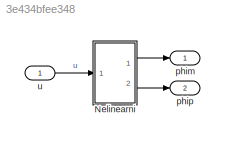
MODEL slx_3e434bfee348
KIND model
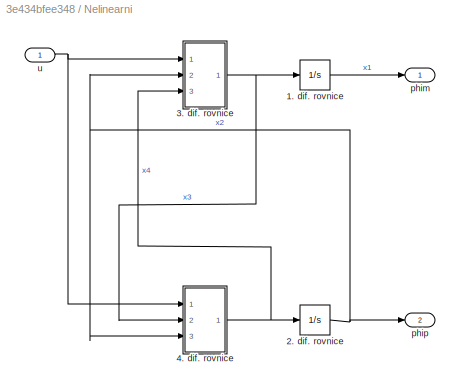
BLOCK [SubSystem] Nelinearni
  Ports = [1, 2]
  RequestExecContextInheritance = off
BLOCK [Integrator] Nelinearni/1. dif. rovnice
  Ports = [1, 1]
BLOCK [Integrator] Nelinearni/2. dif. rovnice
  Ports = [1, 1]
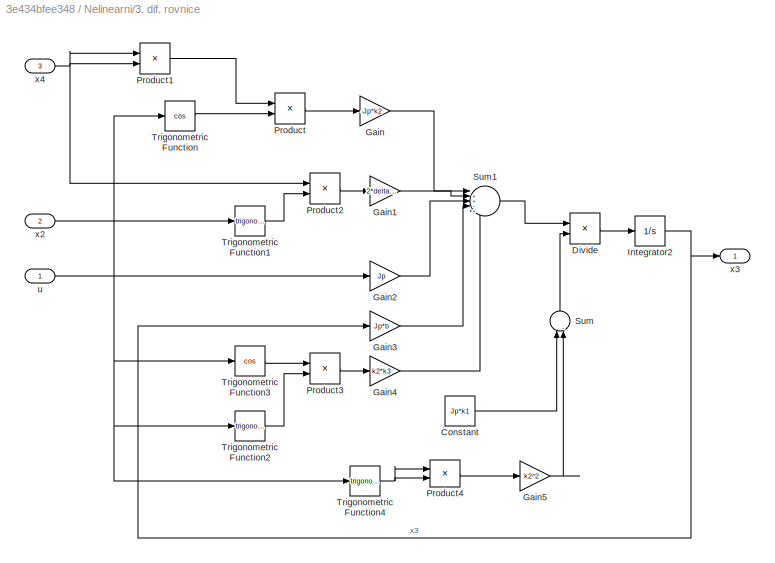
BLOCK [SubSystem] Nelinearni/3. dif. rovnice
  Ports = [3, 1]
  RequestExecContextInheritance = off
BLOCK [Constant] Nelinearni/3. dif. rovnice/Constant
  Value = Jp*k1
BLOCK [Product] Nelinearni/3. dif. rovnice/Divide
  InputSameDT = off
  Inputs = */
  OutDataTypeStr = Inherit: Inherit via internal rule
  Ports = [2, 1]
  RndMeth = Floor
  SaturateOnIntegerOverflow = off
BLOCK [Gain] Nelinearni/3. dif. rovnice/Gain
  Gain = -Jp*k2
  OutDataTypeStr = Inherit: Inherit via internal rule
  ParamDataTypeStr = Inherit: Inherit via internal rule
  SaturateOnIntegerOverflow = off
BLOCK [Gain] Nelinearni/3. dif. rovnice/Gain1
  Gain = 2*delta*k2
  OutDataTypeStr = Inherit: Inherit via internal rule
  ParamDataTypeStr = Inherit: Inherit via internal rule
  SaturateOnIntegerOverflow = off
BLOCK [Gain] Nelinearni/3. dif. rovnice/Gain2
  Gain = Jp
  OutDataTypeStr = Inherit: Inherit via internal rule
  ParamDataTypeStr = Inherit: Inherit via internal rule
  SaturateOnIntegerOverflow = off
BLOCK [Gain] Nelinearni/3. dif. rovnice/Gain3
  Gain = Jp*b
  OutDataTypeStr = Inherit: Inherit via internal rule
  ParamDataTypeStr = Inherit: Inherit via internal rule
  SaturateOnIntegerOverflow = off
BLOCK [Gain] Nelinearni/3. dif. rovnice/Gain4
  Gain = k2*k3
  OutDataTypeStr = Inherit: Inherit via internal rule
  ParamDataTypeStr = Inherit: Inherit via internal rule
  SaturateOnIntegerOverflow = off
BLOCK [Gain] Nelinearni/3. dif. rovnice/Gain5
  Gain = k2^2
  OutDataTypeStr = Inherit: Inherit via internal rule
  ParamDataTypeStr = Inherit: Inherit via internal rule
  SaturateOnIntegerOverflow = off
BLOCK [Integrator] Nelinearni/3. dif. rovnice/Integrator2
  Ports = [1, 1]
BLOCK [Product] Nelinearni/3. dif. rovnice/Product
  InputSameDT = off
  OutDataTypeStr = Inherit: Inherit via internal rule
  Ports = [2, 1]
  RndMeth = Floor
  SaturateOnIntegerOverflow = off
BLOCK [Product] Nelinearni/3. dif. rovnice/Product1
  InputSameDT = off
  OutDataTypeStr = Inherit: Inherit via internal rule
  Ports = [2, 1]
  RndMeth = Floor
  SaturateOnIntegerOverflow = off
BLOCK [Product] Nelinearni/3. dif. rovnice/Product2
  InputSameDT = off
  OutDataTypeStr = Inherit: Inherit via internal rule
  Ports = [2, 1]
  RndMeth = Floor
  SaturateOnIntegerOverflow = off
BLOCK [Product] Nelinearni/3. dif. rovnice/Product3
  InputSameDT = off
  OutDataTypeStr = Inherit: Inherit via internal rule
  Ports = [2, 1]
  RndMeth = Floor
  SaturateOnIntegerOverflow = off
BLOCK [Product] Nelinearni/3. dif. rovnice/Product4
  InputSameDT = off
  OutDataTypeStr = Inherit: Inherit via internal rule
  Ports = [2, 1]
  RndMeth = Floor
  SaturateOnIntegerOverflow = off
BLOCK [Sum] Nelinearni/3. dif. rovnice/Sum
  IconShape = round
  InputSameDT = off
  Inputs = |-+
  OutDataTypeStr = Inherit: Inherit via internal rule
  Ports = [2, 1]
  SaturateOnIntegerOverflow = off
BLOCK [Sum] Nelinearni/3. dif. rovnice/Sum1
  IconShape = round
  InputSameDT = off
  Inputs = |++-++
  OutDataTypeStr = Inherit: Inherit via internal rule
  Ports = [5, 1]
  SaturateOnIntegerOverflow = off
BLOCK [Trigonometry] Nelinearni/3. dif. rovnice/Trigonometric Function
  Operator = cos
  Ports = [1, 1]
BLOCK [Trigonometry] Nelinearni/3. dif. rovnice/Trigonometric Function1
  Ports = [1, 1]
BLOCK [Trigonometry] Nelinearni/3. dif. rovnice/Trigonometric Function2
  Ports = [1, 1]
BLOCK [Trigonometry] Nelinearni/3. dif. rovnice/Trigonometric Function3
  Operator = cos
  Ports = [1, 1]
BLOCK [Trigonometry] Nelinearni/3. dif. rovnice/Trigonometric Function4
  Ports = [1, 1]
BLOCK [Inport] Nelinearni/3. dif. rovnice/u
  IconDisplay = Port number
BLOCK [Inport] Nelinearni/3. dif. rovnice/x2
  IconDisplay = Port number
  Port = 2
BLOCK [Outport] Nelinearni/3. dif. rovnice/x3
  IconDisplay = Port number
BLOCK [Inport] Nelinearni/3. dif. rovnice/x4
  IconDisplay = Port number
  Port = 3
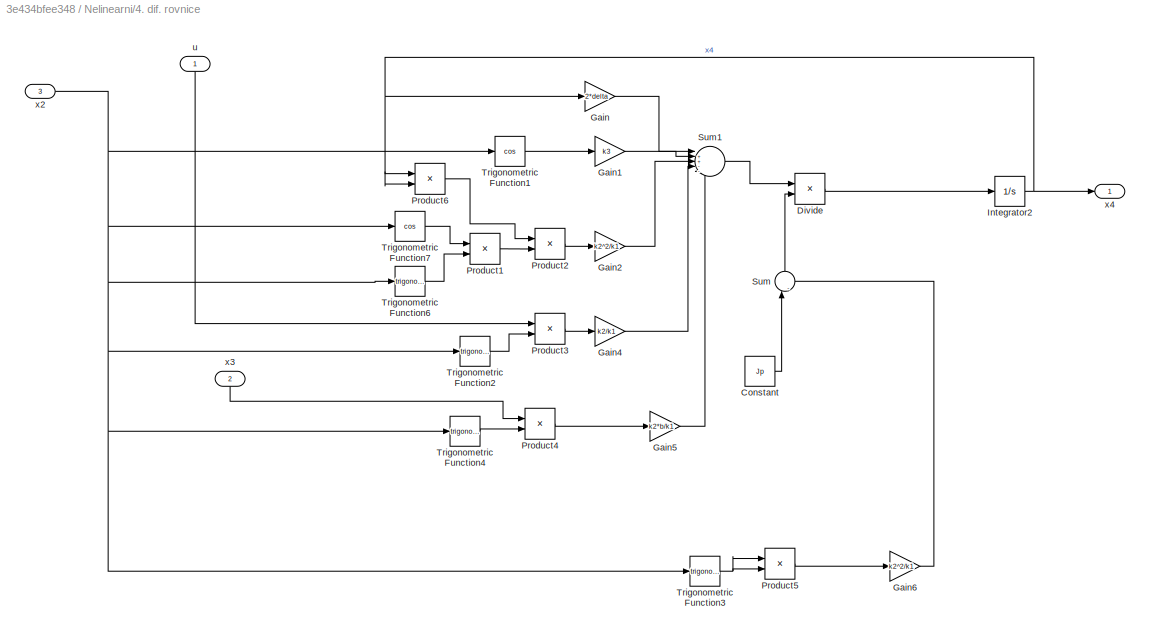
BLOCK [SubSystem] Nelinearni/4. dif. rovnice
  Ports = [3, 1]
  RequestExecContextInheritance = off
BLOCK [Constant] Nelinearni/4. dif. rovnice/Constant
  Value = Jp
BLOCK [Product] Nelinearni/4. dif. rovnice/Divide
  InputSameDT = off
  Inputs = */
  OutDataTypeStr = Inherit: Inherit via internal rule
  Ports = [2, 1]
  RndMeth = Floor
  SaturateOnIntegerOverflow = off
BLOCK [Gain] Nelinearni/4. dif. rovnice/Gain
  Gain = 2*delta
  OutDataTypeStr = Inherit: Inherit via internal rule
  ParamDataTypeStr = Inherit: Inherit via internal rule
  SaturateOnIntegerOverflow = off
BLOCK [Gain] Nelinearni/4. dif. rovnice/Gain1
  Gain = k3
  OutDataTypeStr = Inherit: Inherit via internal rule
  ParamDataTypeStr = Inherit: Inherit via internal rule
  SaturateOnIntegerOverflow = off
BLOCK [Gain] Nelinearni/4. dif. rovnice/Gain2
  Gain = k2^2/k1
  OutDataTypeStr = Inherit: Inherit via internal rule
  ParamDataTypeStr = Inherit: Inherit via internal rule
  SaturateOnIntegerOverflow = off
BLOCK [Gain] Nelinearni/4. dif. rovnice/Gain4
  Gain = k2/k1
  OutDataTypeStr = Inherit: Inherit via internal rule
  ParamDataTypeStr = Inherit: Inherit via internal rule
  SaturateOnIntegerOverflow = off
BLOCK [Gain] Nelinearni/4. dif. rovnice/Gain5
  Gain = k2*b/k1
  OutDataTypeStr = Inherit: Inherit via internal rule
  ParamDataTypeStr = Inherit: Inherit via internal rule
  SaturateOnIntegerOverflow = off
BLOCK [Gain] Nelinearni/4. dif. rovnice/Gain6
  Gain = k2^2/k1
  OutDataTypeStr = Inherit: Inherit via internal rule
  ParamDataTypeStr = Inherit: Inherit via internal rule
  SaturateOnIntegerOverflow = off
BLOCK [Integrator] Nelinearni/4. dif. rovnice/Integrator2
  Ports = [1, 1]
BLOCK [Product] Nelinearni/4. dif. rovnice/Product1
  InputSameDT = off
  OutDataTypeStr = Inherit: Inherit via internal rule
  Ports = [2, 1]
  RndMeth = Floor
  SaturateOnIntegerOverflow = off
BLOCK [Product] Nelinearni/4. dif. rovnice/Product2
  InputSameDT = off
  OutDataTypeStr = Inherit: Inherit via internal rule
  Ports = [2, 1]
  RndMeth = Floor
  SaturateOnIntegerOverflow = off
BLOCK [Product] Nelinearni/4. dif. rovnice/Product3
  InputSameDT = off
  OutDataTypeStr = Inherit: Inherit via internal rule
  Ports = [2, 1]
  RndMeth = Floor
  SaturateOnIntegerOverflow = off
BLOCK [Product] Nelinearni/4. dif. rovnice/Product4
  InputSameDT = off
  OutDataTypeStr = Inherit: Inherit via internal rule
  Ports = [2, 1]
  RndMeth = Floor
  SaturateOnIntegerOverflow = off
BLOCK [Product] Nelinearni/4. dif. rovnice/Product5
  InputSameDT = off
  OutDataTypeStr = Inherit: Inherit via internal rule
  Ports = [2, 1]
  RndMeth = Floor
  SaturateOnIntegerOverflow = off
BLOCK [Product] Nelinearni/4. dif. rovnice/Product6
  InputSameDT = off
  OutDataTypeStr = Inherit: Inherit via internal rule
  Ports = [2, 1]
  RndMeth = Floor
  SaturateOnIntegerOverflow = off
BLOCK [Sum] Nelinearni/4. dif. rovnice/Sum
  IconShape = round
  InputSameDT = off
  Inputs = |-+
  OutDataTypeStr = Inherit: Inherit via internal rule
  Ports = [2, 1]
  SaturateOnIntegerOverflow = off
BLOCK [Sum] Nelinearni/4. dif. rovnice/Sum1
  IconShape = round
  InputSameDT = off
  Inputs = |++--+
  OutDataTypeStr = Inherit: Inherit via internal rule
  Ports = [5, 1]
  SaturateOnIntegerOverflow = off
BLOCK [Trigonometry] Nelinearni/4. dif. rovnice/Trigonometric Function1
  Operator = cos
  Ports = [1, 1]
BLOCK [Trigonometry] Nelinearni/4. dif. rovnice/Trigonometric Function2
  Ports = [1, 1]
BLOCK [Trigonometry] Nelinearni/4. dif. rovnice/Trigonometric Function3
  Ports = [1, 1]
BLOCK [Trigonometry] Nelinearni/4. dif. rovnice/Trigonometric Function4
  Ports = [1, 1]
BLOCK [Trigonometry] Nelinearni/4. dif. rovnice/Trigonometric Function6
  Ports = [1, 1]
BLOCK [Trigonometry] Nelinearni/4. dif. rovnice/Trigonometric Function7
  Operator = cos
  Ports = [1, 1]
BLOCK [Inport] Nelinearni/4. dif. rovnice/u
  IconDisplay = Port number
BLOCK [Inport] Nelinearni/4. dif. rovnice/x2
  IconDisplay = Port number
  Port = 3
BLOCK [Inport] Nelinearni/4. dif. rovnice/x3 
  IconDisplay = Port number
  Port = 2
BLOCK [Outport] Nelinearni/4. dif. rovnice/x4
  IconDisplay = Port number
BLOCK [Outport] Nelinearni/phim
  IconDisplay = Port number
BLOCK [Outport] Nelinearni/phip
  IconDisplay = Port number
  Port = 2
BLOCK [Inport] Nelinearni/u
  IconDisplay = Port number
BLOCK [Outport] phim
  IconDisplay = Port number
BLOCK [Outport] phip
  IconDisplay = Port number
  Port = 2
BLOCK [Inport] u
  IconDisplay = Port number
LINE Nelinearni/1. dif. rovnice:1 -> Nelinearni/phim:1
NET Nelinearni/2. dif. rovnice:1 -> Nelinearni/3. dif. rovnice:2, Nelinearni/4. dif. rovnice:3, Nelinearni/phip:1
LINE Nelinearni/3. dif. rovnice/Constant:1 -> Nelinearni/3. dif. rovnice/Sum:1
LINE Nelinearni/3. dif. rovnice/Divide:1 -> Nelinearni/3. dif. rovnice/Integrator2:1
LINE Nelinearni/3. dif. rovnice/Gain1:1 -> Nelinearni/3. dif. rovnice/Sum1:2
LINE Nelinearni/3. dif. rovnice/Gain2:1 -> Nelinearni/3. dif. rovnice/Sum1:3
LINE Nelinearni/3. dif. rovnice/Gain3:1 -> Nelinearni/3. dif. rovnice/Sum1:4
LINE Nelinearni/3. dif. rovnice/Gain4:1 -> Nelinearni/3. dif. rovnice/Sum1:5
LINE Nelinearni/3. dif. rovnice/Gain5:1 -> Nelinearni/3. dif. rovnice/Sum:2
LINE Nelinearni/3. dif. rovnice/Gain:1 -> Nelinearni/3. dif. rovnice/Sum1:1
NET Nelinearni/3. dif. rovnice/Integrator2:1 -> Nelinearni/3. dif. rovnice/Gain3:1, Nelinearni/3. dif. rovnice/x3:1
LINE Nelinearni/3. dif. rovnice/Product1:1 -> Nelinearni/3. dif. rovnice/Product:1
LINE Nelinearni/3. dif. rovnice/Product2:1 -> Nelinearni/3. dif. rovnice/Gain1:1
LINE Nelinearni/3. dif. rovnice/Product3:1 -> Nelinearni/3. dif. rovnice/Gain4:1
LINE Nelinearni/3. dif. rovnice/Product4:1 -> Nelinearni/3. dif. rovnice/Gain5:1
LINE Nelinearni/3. dif. rovnice/Product:1 -> Nelinearni/3. dif. rovnice/Gain:1
LINE Nelinearni/3. dif. rovnice/Sum1:1 -> Nelinearni/3. dif. rovnice/Divide:1
LINE Nelinearni/3. dif. rovnice/Sum:1 -> Nelinearni/3. dif. rovnice/Divide:2
LINE Nelinearni/3. dif. rovnice/Trigonometric Function1:1 -> Nelinearni/3. dif. rovnice/Product2:2
LINE Nelinearni/3. dif. rovnice/Trigonometric Function2:1 -> Nelinearni/3. dif. rovnice/Product3:2
LINE Nelinearni/3. dif. rovnice/Trigonometric Function3:1 -> Nelinearni/3. dif. rovnice/Product3:1
NET Nelinearni/3. dif. rovnice/Trigonometric Function4:1 -> Nelinearni/3. dif. rovnice/Product4:1, Nelinearni/3. dif. rovnice/Product4:2
LINE Nelinearni/3. dif. rovnice/Trigonometric Function:1 -> Nelinearni/3. dif. rovnice/Product:2
LINE Nelinearni/3. dif. rovnice/u:1 -> Nelinearni/3. dif. rovnice/Gain2:1
NET Nelinearni/3. dif. rovnice/x2:1 -> Nelinearni/3. dif. rovnice/Trigonometric Function1:1, Nelinearni/3. dif. rovnice/Trigonometric Function2:1, Nelinearni/3. dif. rovnice/Trigonometric Function3:1, Nelinearni/3. dif. rovnice/Trigonometric Function4:1, Nelinearni/3. dif. rovnice/Trigonometric Function:1
NET Nelinearni/3. dif. rovnice/x4:1 -> Nelinearni/3. dif. rovnice/Product1:1, Nelinearni/3. dif. rovnice/Product1:2, Nelinearni/3. dif. rovnice/Product2:1
NET Nelinearni/3. dif. rovnice:1 -> Nelinearni/1. dif. rovnice:1, Nelinearni/4. dif. rovnice:2
LINE Nelinearni/4. dif. rovnice/Constant:1 -> Nelinearni/4. dif. rovnice/Sum:1
LINE Nelinearni/4. dif. rovnice/Divide:1 -> Nelinearni/4. dif. rovnice/Integrator2:1
LINE Nelinearni/4. dif. rovnice/Gain1:1 -> Nelinearni/4. dif. rovnice/Sum1:2
LINE Nelinearni/4. dif. rovnice/Gain2:1 -> Nelinearni/4. dif. rovnice/Sum1:3
LINE Nelinearni/4. dif. rovnice/Gain4:1 -> Nelinearni/4. dif. rovnice/Sum1:4
LINE Nelinearni/4. dif. rovnice/Gain5:1 -> Nelinearni/4. dif. rovnice/Sum1:5
LINE Nelinearni/4. dif. rovnice/Gain6:1 -> Nelinearni/4. dif. rovnice/Sum:2
LINE Nelinearni/4. dif. rovnice/Gain:1 -> Nelinearni/4. dif. rovnice/Sum1:1
NET Nelinearni/4. dif. rovnice/Integrator2:1 -> Nelinearni/4. dif. rovnice/Gain:1, Nelinearni/4. dif. rovnice/Product6:1, Nelinearni/4. dif. rovnice/Product6:2, Nelinearni/4. dif. rovnice/x4:1
LINE Nelinearni/4. dif. rovnice/Product1:1 -> Nelinearni/4. dif. rovnice/Product2:2
LINE Nelinearni/4. dif. rovnice/Product2:1 -> Nelinearni/4. dif. rovnice/Gain2:1
LINE Nelinearni/4. dif. rovnice/Product3:1 -> Nelinearni/4. dif. rovnice/Gain4:1
LINE Nelinearni/4. dif. rovnice/Product4:1 -> Nelinearni/4. dif. rovnice/Gain5:1
LINE Nelinearni/4. dif. rovnice/Product5:1 -> Nelinearni/4. dif. rovnice/Gain6:1
LINE Nelinearni/4. dif. rovnice/Product6:1 -> Nelinearni/4. dif. rovnice/Product2:1
LINE Nelinearni/4. dif. rovnice/Sum1:1 -> Nelinearni/4. dif. rovnice/Divide:1
LINE Nelinearni/4. dif. rovnice/Sum:1 -> Nelinearni/4. dif. rovnice/Divide:2
LINE Nelinearni/4. dif. rovnice/Trigonometric Function1:1 -> Nelinearni/4. dif. rovnice/Gain1:1
LINE Nelinearni/4. dif. rovnice/Trigonometric Function2:1 -> Nelinearni/4. dif. rovnice/Product3:2
NET Nelinearni/4. dif. rovnice/Trigonometric Function3:1 -> Nelinearni/4. dif. rovnice/Product5:1, Nelinearni/4. dif. rovnice/Product5:2
LINE Nelinearni/4. dif. rovnice/Trigonometric Function4:1 -> Nelinearni/4. dif. rovnice/Product4:2
LINE Nelinearni/4. dif. rovnice/Trigonometric Function6:1 -> Nelinearni/4. dif. rovnice/Product1:2
LINE Nelinearni/4. dif. rovnice/Trigonometric Function7:1 -> Nelinearni/4. dif. rovnice/Product1:1
LINE Nelinearni/4. dif. rovnice/u:1 -> Nelinearni/4. dif. rovnice/Product3:1
NET Nelinearni/4. dif. rovnice/x2:1 -> Nelinearni/4. dif. rovnice/Trigonometric Function1:1, Nelinearni/4. dif. rovnice/Trigonometric Function2:1, Nelinearni/4. dif. rovnice/Trigonometric Function3:1, Nelinearni/4. dif. rovnice/Trigonometric Function4:1, Nelinearni/4. dif. rovnice/Trigonometric Function6:1, Nelinearni/4. dif. rovnice/Trigonometric Function7:1
LINE Nelinearni/4. dif. rovnice/x3 :1 -> Nelinearni/4. dif. rovnice/Product4:1
NET Nelinearni/4. dif. rovnice:1 -> Nelinearni/2. dif. rovnice:1, Nelinearni/3. dif. rovnice:3
NET Nelinearni/u:1 -> Nelinearni/3. dif. rovnice:1, Nelinearni/4. dif. rovnice:1
LINE Nelinearni:1 -> phim:1
LINE Nelinearni:2 -> phip:1
LINE u:1 -> Nelinearni:1
note: NET lines group one-source signal fan-out (src -> all destinations, sorted); 1:1 wires keep LINE
